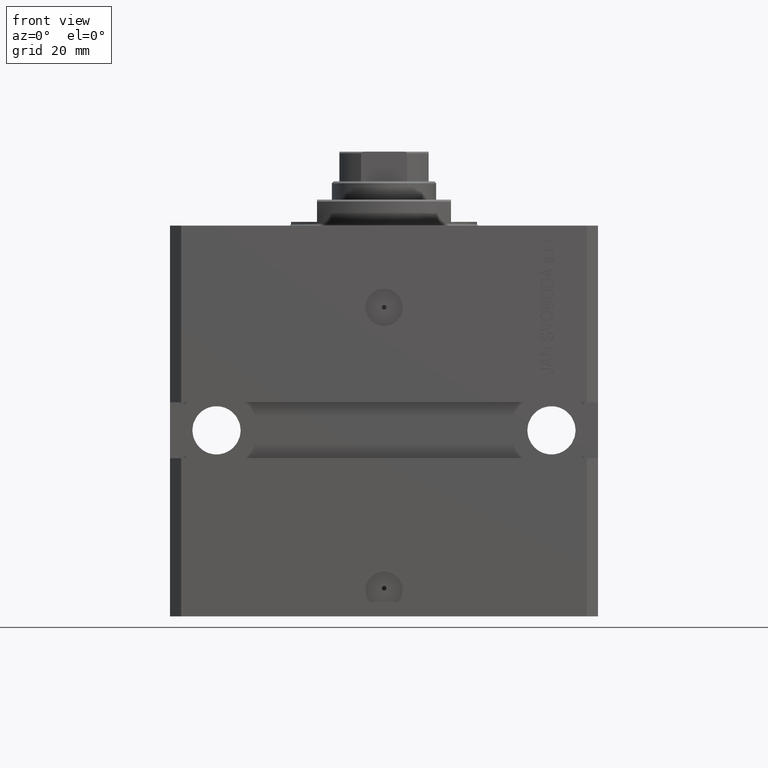
[diagram: clean part render]
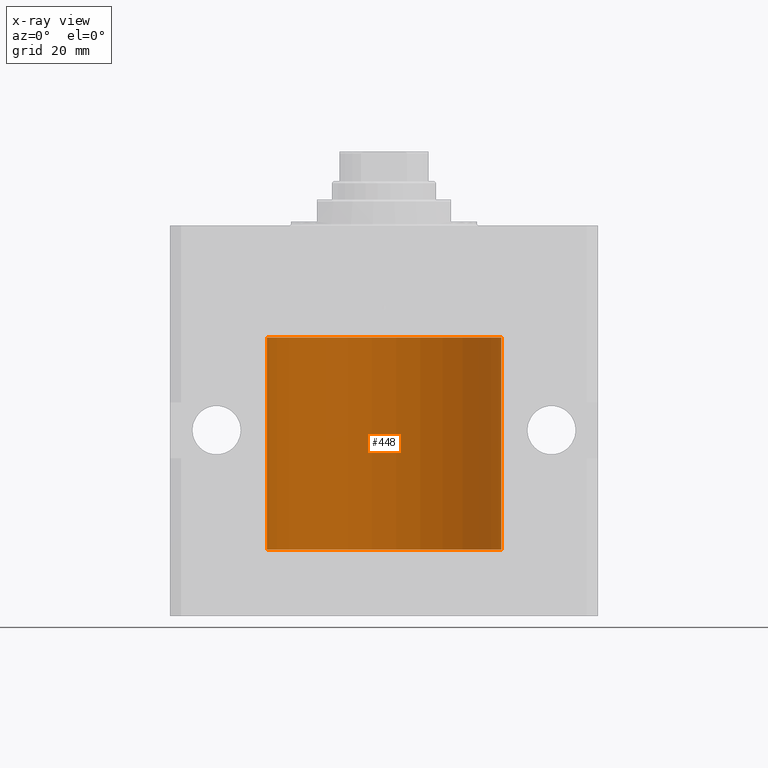
[diagram: x-ray — body ghosted, one internal face saturated and labeled with its STEP entity id]
A machine part, front view, then the same camera in x-ray: the body is ghosted and one INTERNAL B-rep face — a face not visible from any outside direction — is saturated and labeled: STEP entity #448.
In plain terms, the highlighted cylindrical surface (partial cylindrical patch) has radius 31.5 mm, axis along (0, 0, 1).
Its self-contained STEP definition (entity closure, byte-faithful):
#347 = VECTOR ( 'NONE', #28360, 1000.000000000000000 ) ;
#448 = ADVANCED_FACE ( 'NONE', ( #39908 ), #28829, .F. ) ;
#1653 = VERTEX_POINT ( 'NONE', #17039 ) ;
#2258 = DIRECTION ( 'NONE',  ( -0.000000000000000000, -0.000000000000000000, 1.000000000000000000 ) ) ;
#2866 = VERTEX_POINT ( 'NONE', #36880 ) ;
#3238 = CARTESIAN_POINT ( 'NONE',  ( -31.49999999999998579, 0.1631661150515253123, -84.62499999999982947 ) ) ;
#3956 = CARTESIAN_POINT ( 'NONE',  ( -31.50000000000006395, 3.480981129463732167E-13, -84.62500000000324007 ) ) ;
#4082 = ORIENTED_EDGE ( 'NONE', *, *, #47050, .T. ) ;
#5390 = CARTESIAN_POINT ( 'NONE',  ( -31.50000000000000000, 3.857637417314161900E-15, -87.10000000000000853 ) ) ;
#5643 = B_SPLINE_CURVE_WITH_KNOTS ( 'NONE', 3,
 ( #41835, #26352, #26111, #11599, #45533, #22435, #37433, #33490, #11839, #37667, #3238, #3956 ),
 .UNSPECIFIED., .F., .F.,
 ( 4, 2, 2, 2, 2, 4 ),
 ( 3.075703443732137786E-18, 0.0002442604562134845204, 0.0004885209124269658965, 0.0009770418248538992670, 0.001465562737280832637, 0.001954083649707766008 ),
 .UNSPECIFIED. ) ;
#9325 = LINE ( 'NONE', #5390, #42100 ) ;
#10033 = VECTOR ( 'NONE', #27352, 1000.000000000000000 ) ;
#10223 = CARTESIAN_POINT ( 'NONE',  ( -31.50000000000000000, 7.975607743522037396E-16, -83.37500000000000000 ) ) ;
#11479 = AXIS2_PLACEMENT_3D ( 'NONE', #36194, #46546, #42850 ) ;
#11545 = VERTEX_POINT ( 'NONE', #10223 ) ;
#11599 = CARTESIAN_POINT ( 'NONE',  ( -31.49851563474691218, 0.3150284575672411824, -83.45401791159622462 ) ) ;
#11745 = AXIS2_PLACEMENT_3D ( 'NONE', #25383, #2258, #43602 ) ;
#11839 = CARTESIAN_POINT ( 'NONE',  ( -31.49526081842315151, 0.5587119163470756211, -84.32511513093052713 ) ) ;
#13863 = CARTESIAN_POINT ( 'NONE',  ( 31.50000000000000000, 0.000000000000000000, -87.10000000000000853 ) ) ;
#14301 = DIRECTION ( 'NONE',  ( 1.000000000000000000, 0.000000000000000000, 0.000000000000000000 ) ) ;
#16670 = EDGE_LOOP ( 'NONE', ( #37175, #19488, #4082, #39640, #36999, #42757 ) ) ;
#17039 = CARTESIAN_POINT ( 'NONE',  ( -31.50000000000006395, 3.480981129463732167E-13, -84.62500000000324007 ) ) ;
#17340 = EDGE_CURVE ( 'NONE', #45663, #30375, #20104, .T. ) ;
#17784 = VERTEX_POINT ( 'NONE', #40670 ) ;
#18035 = EDGE_CURVE ( 'NONE', #2866, #17784, #19363, .T. ) ;
#18386 = EDGE_CURVE ( 'NONE', #11545, #17784, #9325, .T. ) ;
#18527 = AXIS2_PLACEMENT_3D ( 'NONE', #29757, #22171, #14301 ) ;
#19256 = CARTESIAN_POINT ( 'NONE',  ( -31.50000000000000000, 3.857637417314161900E-15, -87.10000000000000853 ) ) ;
#19363 = CIRCLE ( 'NONE', #11479, 31.50000000000000000 ) ;
#19488 = ORIENTED_EDGE ( 'NONE', *, *, #17340, .F. ) ;
#20104 = CIRCLE ( 'NONE', #18527, 31.50000000000000000 ) ;
#20154 = EDGE_CURVE ( 'NONE', #11545, #1653, #5643, .T. ) ;
#21145 = DIRECTION ( 'NONE',  ( -0.000000000000000000, -0.000000000000000000, 1.000000000000000000 ) ) ;
#21839 = CARTESIAN_POINT ( 'NONE',  ( -31.50000000000000000, 3.857637417314161900E-15, -87.10000000000000853 ) ) ;
#22171 = DIRECTION ( 'NONE',  ( 0.000000000000000000, 0.000000000000000000, 1.000000000000000000 ) ) ;
#22435 = CARTESIAN_POINT ( 'NONE',  ( -31.49528028230855270, 0.5573323339569611345, -83.67349008819321909 ) ) ;
#23289 = CARTESIAN_POINT ( 'NONE',  ( 31.50000000000000000, 0.000000000000000000, -87.10000000000000853 ) ) ;
#25383 = CARTESIAN_POINT ( 'NONE',  ( 0.000000000000000000, 0.000000000000000000, -87.10000000000000853 ) ) ;
#25642 = EDGE_CURVE ( 'NONE', #30375, #1653, #38417, .T. ) ;
#26111 = CARTESIAN_POINT ( 'NONE',  ( -31.49966591610109390, 0.1636376958180636443, -83.39126189995840832 ) ) ;
#26352 = CARTESIAN_POINT ( 'NONE',  ( -31.49999999999998579, 0.08259258789479478891, -83.37499999999998579 ) ) ;
#27352 = DIRECTION ( 'NONE',  ( -0.000000000000000000, -0.000000000000000000, 1.000000000000000000 ) ) ;
#28360 = DIRECTION ( 'NONE',  ( -0.000000000000000000, -0.000000000000000000, 1.000000000000000000 ) ) ;
#28829 = CYLINDRICAL_SURFACE ( 'NONE', #11745, 31.50000000000000000 ) ;
#29757 = CARTESIAN_POINT ( 'NONE',  ( 0.000000000000000000, 0.000000000000000000, -87.10000000000000853 ) ) ;
#30375 = VERTEX_POINT ( 'NONE', #21839 ) ;
#33490 = CARTESIAN_POINT ( 'NONE',  ( -31.49379784581975272, 0.6250577973157672718, -84.16284184848845484 ) ) ;
#36194 = CARTESIAN_POINT ( 'NONE',  ( 0.000000000000000000, 0.000000000000000000, -30.10000000000000142 ) ) ;
#36880 = CARTESIAN_POINT ( 'NONE',  ( 31.50000000000000000, 0.000000000000000000, -30.10000000000000142 ) ) ;
#36999 = ORIENTED_EDGE ( 'NONE', *, *, #18386, .F. ) ;
#37175 = ORIENTED_EDGE ( 'NONE', *, *, #25642, .F. ) ;
#37433 = CARTESIAN_POINT ( 'NONE',  ( -31.49380014137585704, 0.6249421240571523262, -83.83671479190289233 ) ) ;
#37667 = CARTESIAN_POINT ( 'NONE',  ( -31.49853548231893541, 0.3253851488062164399, -84.55855470525685291 ) ) ;
#38417 = LINE ( 'NONE', #19256, #10033 ) ;
#39640 = ORIENTED_EDGE ( 'NONE', *, *, #18035, .T. ) ;
#39908 = FACE_OUTER_BOUND ( 'NONE', #16670, .T. ) ;
#39926 = LINE ( 'NONE', #13863, #347 ) ;
#40670 = CARTESIAN_POINT ( 'NONE',  ( -31.50000000000000000, 3.857637417314161900E-15, -30.10000000000000142 ) ) ;
#41835 = CARTESIAN_POINT ( 'NONE',  ( -31.50000000000000000, 7.975607743522037396E-16, -83.37500000000000000 ) ) ;
#42100 = VECTOR ( 'NONE', #21145, 1000.000000000000000 ) ;
#42757 = ORIENTED_EDGE ( 'NONE', *, *, #20154, .T. ) ;
#42850 = DIRECTION ( 'NONE',  ( 1.000000000000000000, 0.000000000000000000, 0.000000000000000000 ) ) ;
#43602 = DIRECTION ( 'NONE',  ( 1.000000000000000000, 0.000000000000000000, 0.000000000000000000 ) ) ;
#45533 = CARTESIAN_POINT ( 'NONE',  ( -31.49770767031179730, 0.3843648832734379295, -83.50046081259654329 ) ) ;
#45663 = VERTEX_POINT ( 'NONE', #23289 ) ;
#46546 = DIRECTION ( 'NONE',  ( 0.000000000000000000, 0.000000000000000000, 1.000000000000000000 ) ) ;
#47050 = EDGE_CURVE ( 'NONE', #45663, #2866, #39926, .T. ) ;